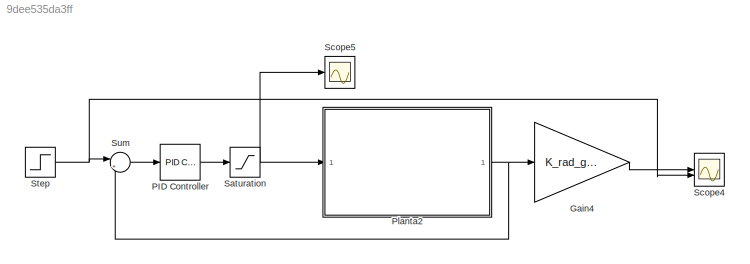
MODEL slx_9dee535da3ff
KIND model
CONFIG AbsTol = auto
CONFIG EnableMultiTasking = off
CONFIG FixedStep = auto
CONFIG MaxStep = auto
CONFIG MinStep = auto
CONFIG RelTol = 1e-3
CONFIG SampleTimeConstraint = Unconstrained
CONFIG SolverName = VariableStepAuto
CONFIG StartTime = 0.0
CONFIG StopTime = 100
BLOCK [Gain] Gain4
  Gain = K_rad_grados
BLOCK [Reference] PID Controller  REF=slpidlib/PID Controller
  LibrarySourceBlock = simulink/Continuous/PID Controller
  SourceBlock = slpidlib/PID Controller
  SourceType = PID 1dof
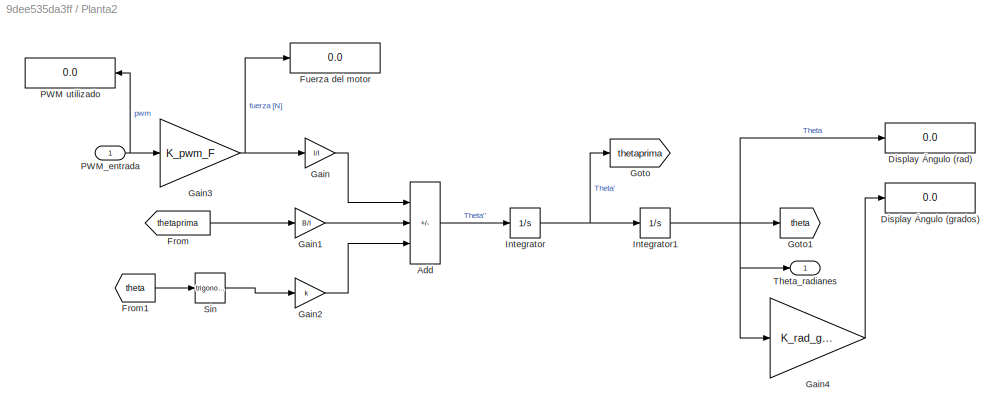
BLOCK [SubSystem] Planta2
BLOCK [Sum] Planta2/Add
  IconShape = rectangular
  Inputs = +--
BLOCK [Display] Planta2/Display Ángulo (grados)
  Decimation = 1
BLOCK [Display] Planta2/Display Ángulo (rad)
  Decimation = 1
BLOCK [From] Planta2/From
  GotoTag = thetaprima
BLOCK [From] Planta2/From1
  GotoTag = theta
BLOCK [Display] Planta2/Fuerza del motor
  Decimation = 1
BLOCK [Gain] Planta2/Gain
  Gain = l/I
BLOCK [Gain] Planta2/Gain1
  Gain = B/I
BLOCK [Gain] Planta2/Gain2
  Gain = k
BLOCK [Gain] Planta2/Gain3
  Gain = K_pwm_F
BLOCK [Gain] Planta2/Gain4
  Gain = K_rad_grados
BLOCK [Goto] Planta2/Goto
  GotoTag = thetaprima
BLOCK [Goto] Planta2/Goto1
  GotoTag = theta
BLOCK [Integrator] Planta2/Integrator
BLOCK [Integrator] Planta2/Integrator1
BLOCK [Display] Planta2/PWM utilizado
  Decimation = 1
  NameLocation = top
BLOCK [Inport] Planta2/PWM_entrada
BLOCK [Trigonometry] Planta2/Sin
BLOCK [Outport] Planta2/Theta_radianes
BLOCK [Saturate] Saturation
  LowerLimit = 0
  UpperLimit = 1025
BLOCK [Scope] Scope4
  ActiveDisplayYMaximum = 68.118997704139417
  ActiveDisplayYMinimum = -20.61734395011354
  DataLoggingVariableName = ScopeData4
  Floating = off
  GraphicalSettings = {"AxesScalingProperties":{"AlignXAxis":"Center","AlignYAxis":"Center","AutoScaleXAxisLimits":false,"AxesScaling":"Manual","AxesScalingNumUpdates":10,"ExpandOnly":true,"ScaleAxesLimitsAtStop":false,"XAxisDataRange":100,"YAxisDataRange":80},"DisplayProperties":{"ColorOrder":["auto","auto","auto","auto","auto","auto","auto","auto","auto","auto","auto","auto","auto","auto","auto","auto","auto","auto",...<+2074ch>
  MultipleDisplayCache = [{"MaxYLimMag":33.75,"MaxYLimReal":68.118997704139417,"MinYLimMag":0,"MinYLimReal":-20.61734395011354,"PlotAsMagnitudePhase":false,"ShowGrid":true,"ShowLegend":false,"Title":"%<SignalLabel>","YLabel":""}]
  NumInputPorts = 2
  ScopeFrameLocation = window
  WasSavedAsWebScope = on
  WindowPosition = [0.000000,36.000000,1280.000000,649.000000,]
BLOCK [Scope] Scope5
  ActiveDisplayYMaximum = 1278.8055452241183
  ActiveDisplayYMinimum = -165.09356618749939
  DataLoggingVariableName = ScopeData5
  Floating = off
  GraphicalSettings = {"Style":{"BackgroundColor":[0.12941176470588237,0.12941176470588237,0.12941176470588237],"AxesColor":[0.07058823529411765,0.07058823529411765,0.07058823529411765],"LabelsColor":[0.8509803921568627,0.8509803921568627,0.8509803921568627],"PreserveColors":false,"Visible":[true],"LineStyle":["-"],"LineWidth":[1.5],"BarWidth":[0.9],"LineColor":["auto"],"LineFaceAlpha":[1],"LineEdgeAlpha":[1],"Marker":...<+1973ch>
  MultipleDisplayCache = [{"MaxYLimMag":1153.125,"MaxYLimReal":1278.8055452241183,"MinYLimMag":0,"MinYLimReal":-165.09356618749939,"PlotAsMagnitudePhase":false,"ShowGrid":true,"ShowLegend":false,"Title":"%<SignalLabel>","YLabel":""}]
  NumInputPorts = 1
  ScopeFrameLocation = window
  WasSavedAsWebScope = on
  WindowPosition = [0.000000,36.000000,1280.000000,649.000000,]
BLOCK [Step] Step
  After = 30
  SampleTime = 0
  Time = 10
BLOCK [Sum] Sum
  Inputs = |+-
LINE Gain4:1 -> Scope4:1
LINE PID Controller:1 -> Saturation:1
LINE Planta2/Add:1 -> Planta2/Integrator:1
LINE Planta2/From1:1 -> Planta2/Sin:1
LINE Planta2/From:1 -> Planta2/Gain1:1
LINE Planta2/Gain1:1 -> Planta2/Add:2
LINE Planta2/Gain2:1 -> Planta2/Add:3
NET Planta2/Gain3:1 -> Planta2/Fuerza del motor:1, Planta2/Gain:1
LINE Planta2/Gain4:1 -> Planta2/Display Ángulo (grados):1
LINE Planta2/Gain:1 -> Planta2/Add:1
NET Planta2/Integrator1:1 -> Planta2/Display Ángulo (rad):1, Planta2/Gain4:1, Planta2/Goto1:1, Planta2/Theta_radianes:1
NET Planta2/Integrator:1 -> Planta2/Goto:1, Planta2/Integrator1:1
NET Planta2/PWM_entrada:1 -> Planta2/Gain3:1, Planta2/PWM utilizado:1
LINE Planta2/Sin:1 -> Planta2/Gain2:1
NET Planta2:1 -> Gain4:1, Sum:2
NET Saturation:1 -> Planta2:1, Scope5:1
NET Step:1 -> Scope4:2, Sum:1
LINE Sum:1 -> PID Controller:1
note: NET lines group one-source signal fan-out (src -> all destinations, sorted); 1:1 wires keep LINE
